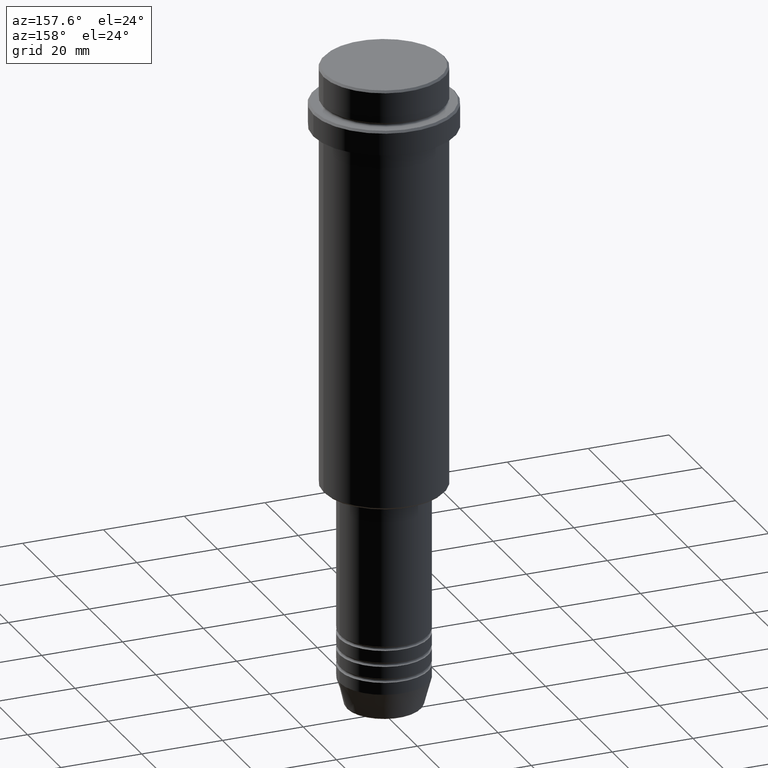
[diagram: clean part render]
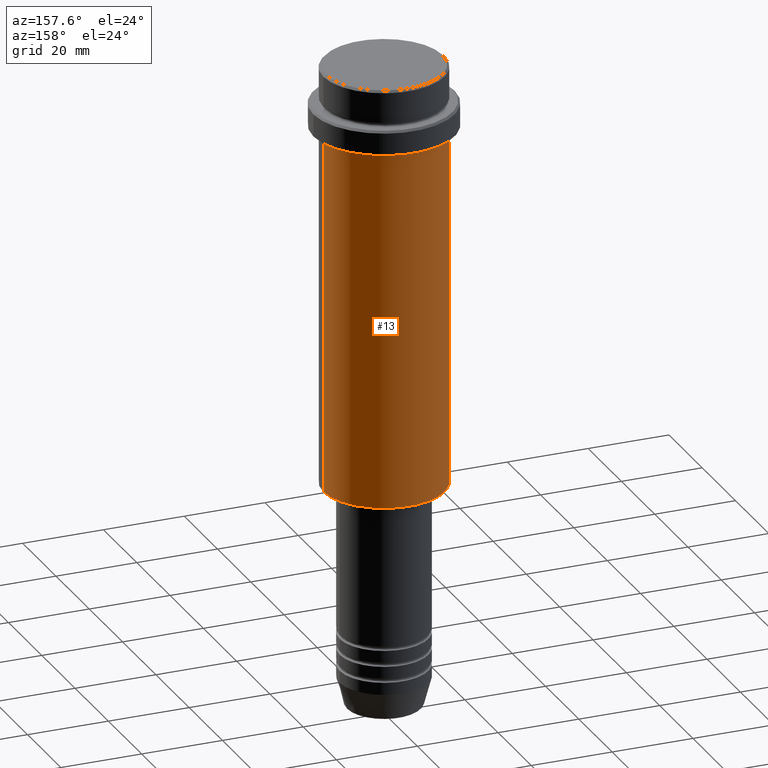
[diagram: same view with one face highlighted and labeled with its STEP entity id]
A machine part, auxiliary view. The second image highlights one B-rep face of the part: STEP entity #13.
In plain terms, the highlighted cylindrical surface (partial cylindrical patch) has radius 15 mm, axis along (-0, -0, 1).
Its self-contained STEP definition (entity closure, byte-faithful):
#6 = DIRECTION ( 'NONE',  ( -0.000000000000000000, -0.000000000000000000, 1.000000000000000000 ) ) ;
#11 = LINE ( 'NONE', #667, #137 ) ;
#13 = ADVANCED_FACE ( 'NONE', ( #542 ), #971, .T. ) ;
#29 = LINE ( 'NONE', #1020, #334 ) ;
#32 = AXIS2_PLACEMENT_3D ( 'NONE', #232, #677, #1118 ) ;
#82 = DIRECTION ( 'NONE',  ( -0.000000000000000000, -0.000000000000000000, 1.000000000000000000 ) ) ;
#126 = DIRECTION ( 'NONE',  ( -1.000000000000000000, 0.000000000000000000, 0.000000000000000000 ) ) ;
#137 = VECTOR ( 'NONE', #6, 1000.000000000000000 ) ;
#154 = EDGE_LOOP ( 'NONE', ( #851, #1397, #956, #159 ) ) ;
#159 = ORIENTED_EDGE ( 'NONE', *, *, #479, .F. ) ;
#194 = EDGE_CURVE ( 'NONE', #1148, #825, #11, .T. ) ;
#232 = CARTESIAN_POINT ( 'NONE',  ( 0.000000000000000000, 0.000000000000000000, -16.00000000000000000 ) ) ;
#263 = VERTEX_POINT ( 'NONE', #995 ) ;
#272 = CARTESIAN_POINT ( 'NONE',  ( 15.00000000000000178, 0.000000000000000000, -16.00000000000000000 ) ) ;
#295 = VERTEX_POINT ( 'NONE', #272 ) ;
#334 = VECTOR ( 'NONE', #902, 1000.000000000000000 ) ;
#402 = DIRECTION ( 'NONE',  ( 1.000000000000000000, 0.000000000000000000, 0.000000000000000000 ) ) ;
#407 = CARTESIAN_POINT ( 'NONE',  ( 0.000000000000000000, 0.000000000000000000, 0.000000000000000000 ) ) ;
#439 = CIRCLE ( 'NONE', #32, 15.00000000000000178 ) ;
#468 = DIRECTION ( 'NONE',  ( -0.000000000000000000, -0.000000000000000000, 1.000000000000000000 ) ) ;
#476 = CARTESIAN_POINT ( 'NONE',  ( -15.00000000000000355, 1.836970198721029983E-15, -16.00000000000000000 ) ) ;
#479 = EDGE_CURVE ( 'NONE', #263, #295, #29, .T. ) ;
#485 = CIRCLE ( 'NONE', #1023, 15.00000000000000000 ) ;
#542 = FACE_OUTER_BOUND ( 'NONE', #154, .T. ) ;
#647 = EDGE_CURVE ( 'NONE', #263, #1148, #485, .T. ) ;
#667 = CARTESIAN_POINT ( 'NONE',  ( -15.00000000000000000, 1.836970198721029589E-15, 0.000000000000000000 ) ) ;
#677 = DIRECTION ( 'NONE',  ( -0.000000000000000000, -0.000000000000000000, 1.000000000000000000 ) ) ;
#679 = CARTESIAN_POINT ( 'NONE',  ( 0.000000000000000000, 0.000000000000000000, -104.5000000000000000 ) ) ;
#825 = VERTEX_POINT ( 'NONE', #476 ) ;
#851 = ORIENTED_EDGE ( 'NONE', *, *, #647, .T. ) ;
#889 = CARTESIAN_POINT ( 'NONE',  ( -15.00000000000000000, 1.836970198721029589E-15, -104.5000000000000000 ) ) ;
#902 = DIRECTION ( 'NONE',  ( -0.000000000000000000, -0.000000000000000000, 1.000000000000000000 ) ) ;
#956 = ORIENTED_EDGE ( 'NONE', *, *, #1269, .F. ) ;
#971 = CYLINDRICAL_SURFACE ( 'NONE', #1291, 15.00000000000000000 ) ;
#995 = CARTESIAN_POINT ( 'NONE',  ( 15.00000000000000000, 0.000000000000000000, -104.5000000000000000 ) ) ;
#1020 = CARTESIAN_POINT ( 'NONE',  ( 15.00000000000000000, 0.000000000000000000, 0.000000000000000000 ) ) ;
#1023 = AXIS2_PLACEMENT_3D ( 'NONE', #679, #468, #126 ) ;
#1118 = DIRECTION ( 'NONE',  ( 1.000000000000000000, 0.000000000000000000, 0.000000000000000000 ) ) ;
#1148 = VERTEX_POINT ( 'NONE', #889 ) ;
#1269 = EDGE_CURVE ( 'NONE', #295, #825, #439, .T. ) ;
#1291 = AXIS2_PLACEMENT_3D ( 'NONE', #407, #82, #402 ) ;
#1397 = ORIENTED_EDGE ( 'NONE', *, *, #194, .T. ) ;